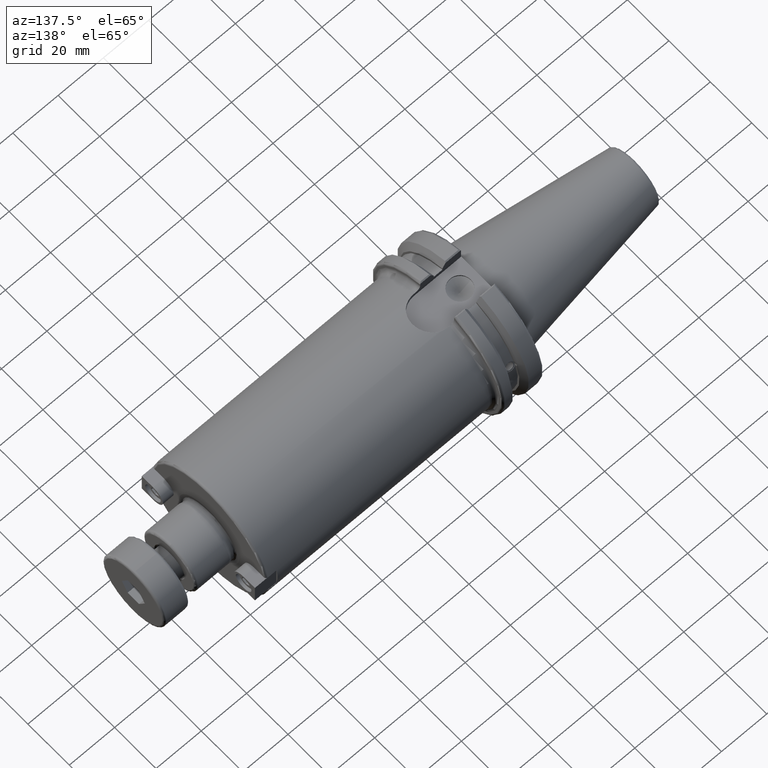
[diagram: clean part render]
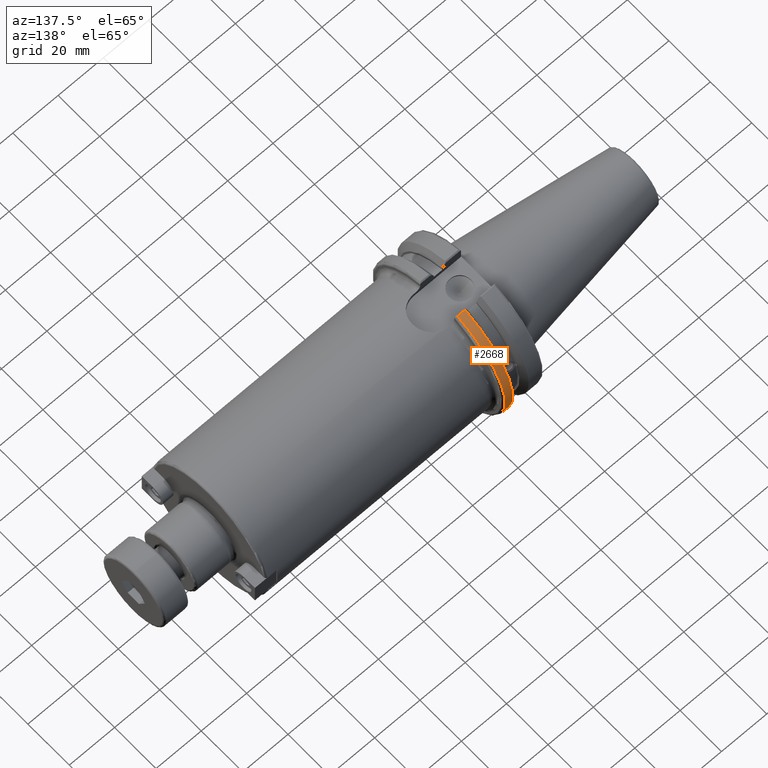
[diagram: same view with one face highlighted and labeled with its STEP entity id]
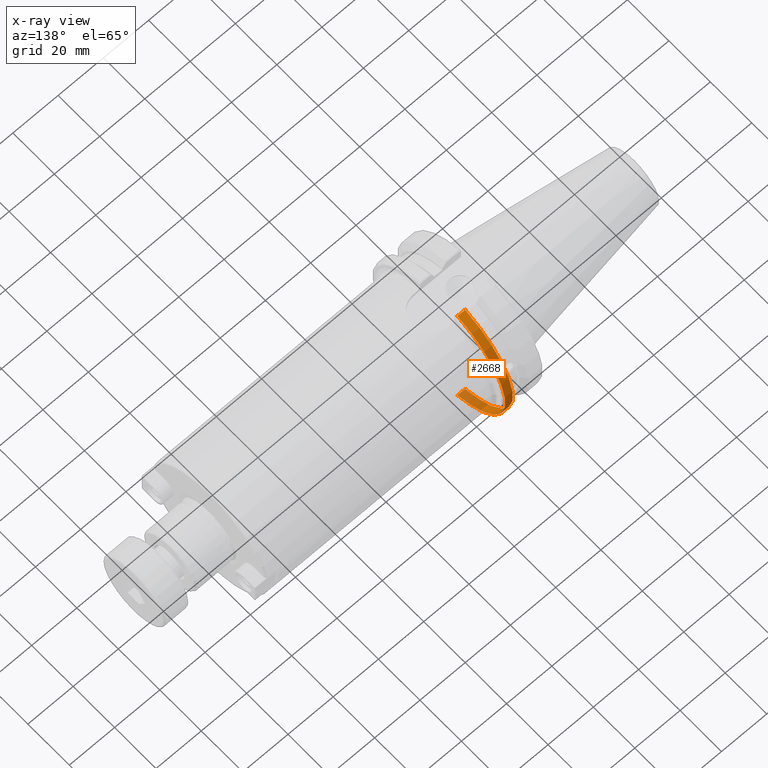
[diagram: x-ray of the same camera — body ghosted, the highlighted face saturated]
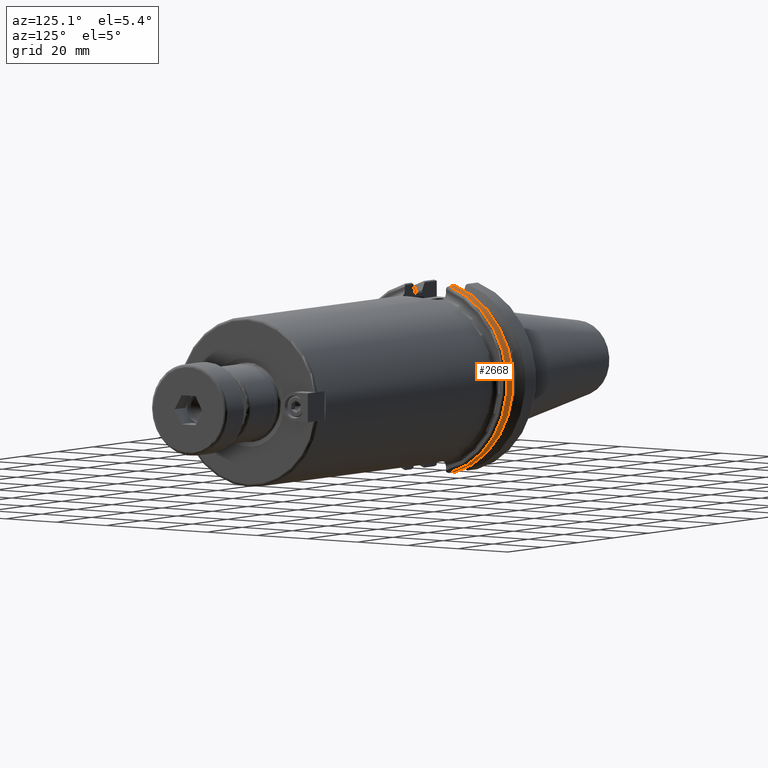
[diagram: same view with one face highlighted and labeled with its STEP entity id]
A machine part, auxiliary view. The second image highlights one B-rep face of the part: STEP entity #2668.
The next image is the same camera in x-ray: the body ghosted, the highlighted face saturated — about 19% of this face is hidden behind the body in this view.
A second angle (auxiliary view) of the same face is appended — the face is thin or edge-on in the first view.
In plain terms, the highlighted cylindrical surface (partial cylindrical patch) has radius 31.75 mm, axis along (1, 0, 0).
Its self-contained STEP definition (entity closure, byte-faithful):
#318=FACE_OUTER_BOUND('',#488,.T.);
#488=EDGE_LOOP('',(#2232,#2233,#2234,#2235));
#638=CIRCLE('',#2994,31.75);
#652=CIRCLE('',#3030,31.75);
#781=LINE('',#4758,#949);
#813=LINE('',#4972,#981);
#949=VECTOR('',#3552,10.);
#981=VECTOR('',#3650,10.);
#1227=VERTEX_POINT('',#4732);
#1228=VERTEX_POINT('',#4741);
#1230=VERTEX_POINT('',#4754);
#1271=VERTEX_POINT('',#4971);
#1546=EDGE_CURVE('',#1227,#1228,#638,.T.);
#1550=EDGE_CURVE('',#1230,#1227,#781,.T.);
#1615=EDGE_CURVE('',#1228,#1271,#813,.T.);
#1617=EDGE_CURVE('',#1230,#1271,#652,.T.);
#2232=ORIENTED_EDGE('',*,*,#1546,.F.);
#2233=ORIENTED_EDGE('',*,*,#1550,.F.);
#2234=ORIENTED_EDGE('',*,*,#1617,.T.);
#2235=ORIENTED_EDGE('',*,*,#1615,.F.);
#2567=CYLINDRICAL_SURFACE('',#3029,31.75);
#2668=ADVANCED_FACE('',(#318),#2567,.T.);
#2994=AXIS2_PLACEMENT_3D('',#4742,#3547,#3548);
#3029=AXIS2_PLACEMENT_3D('',#4976,#3651,#3652);
#3030=AXIS2_PLACEMENT_3D('',#4977,#3653,#3654);
#3547=DIRECTION('center_axis',(1.,0.,0.));
#3548=DIRECTION('ref_axis',(0.,1.,-6.12323399573677E-17));
#3552=DIRECTION('',(1.,0.,0.));
#3650=DIRECTION('',(-1.,0.,0.));
#3651=DIRECTION('center_axis',(1.,0.,0.));
#3652=DIRECTION('ref_axis',(0.,1.,0.));
#3653=DIRECTION('center_axis',(1.,0.,0.));
#3654=DIRECTION('ref_axis',(0.,0.,-1.));
#4732=CARTESIAN_POINT('',(18.05,8.67204822802685,-30.5427254764662));
#4741=CARTESIAN_POINT('',(18.05,8.67204822802685,30.5427254764662));
#4742=CARTESIAN_POINT('Origin',(18.05,0.,0.));
#4754=CARTESIAN_POINT('',(14.6602667690756,8.67204822802685,-30.5427254764662));
#4758=CARTESIAN_POINT('',(16.8551333845378,8.67204822802685,-30.5427254764662));
#4971=CARTESIAN_POINT('',(14.6602667690756,8.67204822802685,30.5427254764662));
#4972=CARTESIAN_POINT('',(16.8551333845378,8.67204822802685,30.5427254764662));
#4976=CARTESIAN_POINT('Origin',(16.8551333845378,0.,0.));
#4977=CARTESIAN_POINT('Origin',(14.6602667690756,0.,0.));